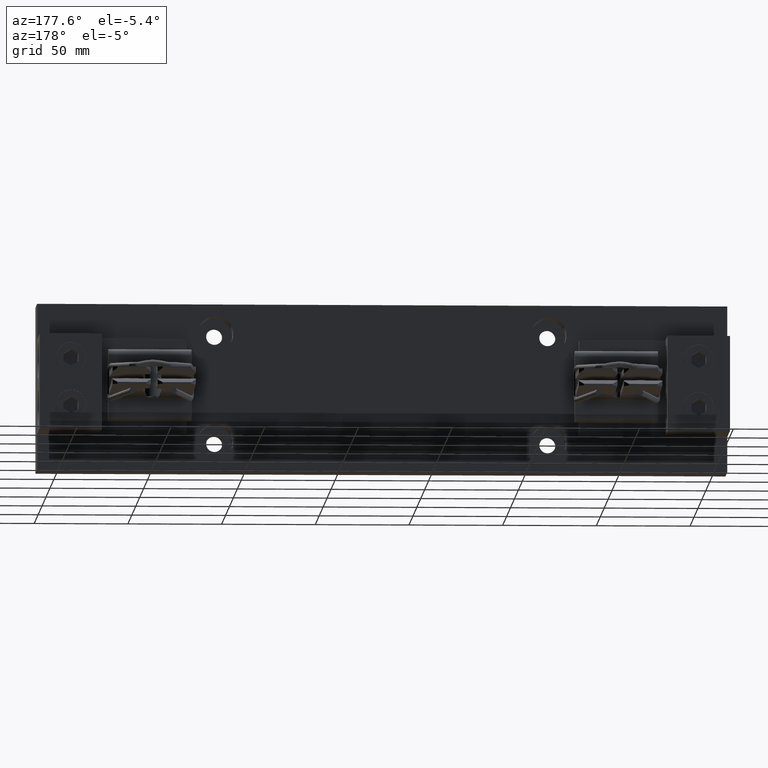
[diagram: clean part render]
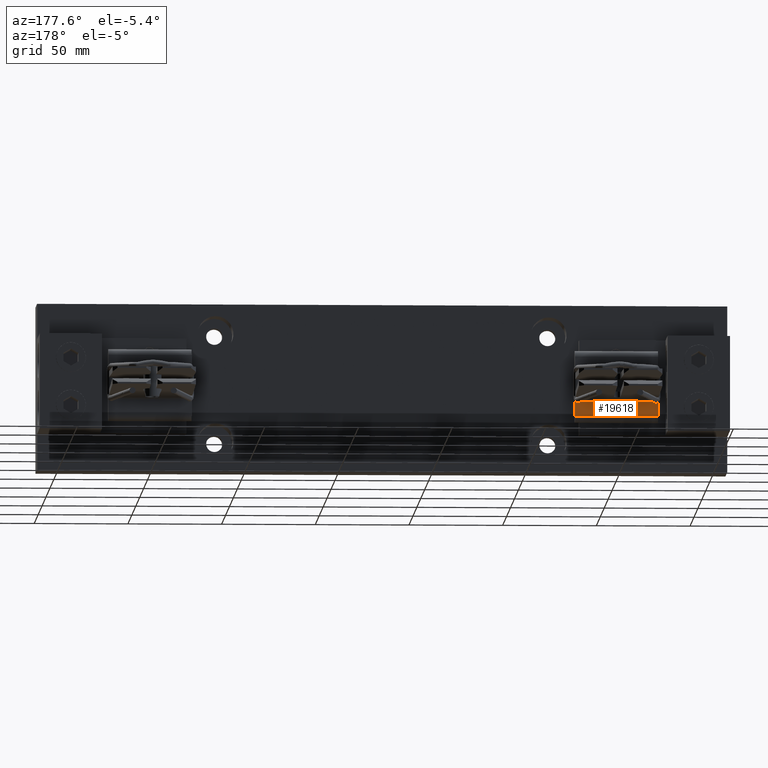
[diagram: same view with one face highlighted and labeled with its STEP entity id]
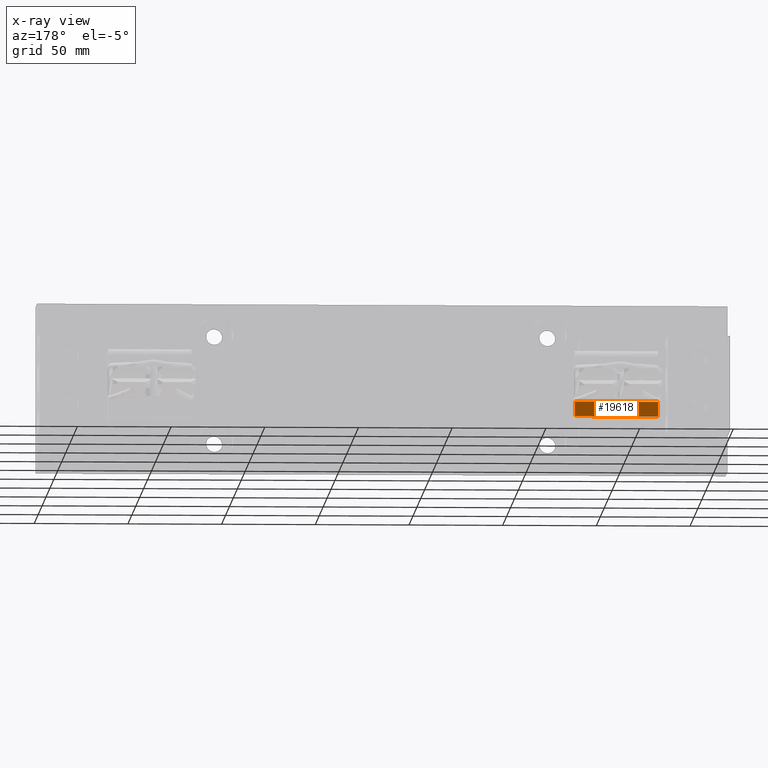
[diagram: x-ray of the same camera — body ghosted, the highlighted face saturated]
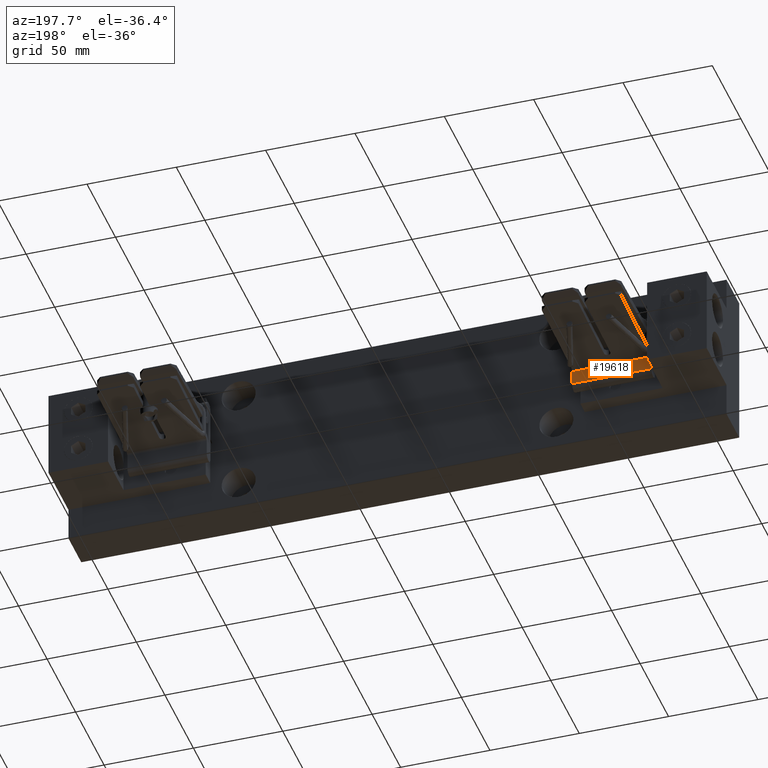
[diagram: same view with one face highlighted and labeled with its STEP entity id]
A machine part, auxiliary view. The second image highlights one B-rep face of the part: STEP entity #19618.
The next image is the same camera in x-ray: the body ghosted, the highlighted face saturated — about 0% of this face is hidden behind the body in this view.
A second angle (auxiliary view) of the same face is appended — the face is thin or edge-on in the first view.
In plain terms, the highlighted planar face has unit normal (0, -1, 0).
Its self-contained STEP definition (entity closure, byte-faithful):
#582 = VERTEX_POINT ( 'NONE', #2393 ) ;
#1145 = LINE ( 'NONE', #24320, #11248 ) ;
#1823 = DIRECTION ( 'NONE',  ( 0.0000000000000000000, -0.0000000000000000000, -1.000000000000000000 ) ) ;
#2393 = CARTESIAN_POINT ( 'NONE',  ( 0.8750000000000000000, 0.2499999999999999700, -0.6315000000000000600 ) ) ;
#2773 = CARTESIAN_POINT ( 'NONE',  ( -0.8750000000000000000, 0.2499999999999999700, -0.6315000000000000600 ) ) ;
#2914 = DIRECTION ( 'NONE',  ( 0.0000000000000000000, 0.0000000000000000000, 1.000000000000000000 ) ) ;
#3705 = CARTESIAN_POINT ( 'NONE',  ( 0.8750000000000000000, 0.2500000000000000600, -0.3200000000000000100 ) ) ;
#3911 = EDGE_CURVE ( 'NONE', #582, #19419, #14519, .T. ) ;
#4604 = LINE ( 'NONE', #3705, #9652 ) ;
#7254 = CARTESIAN_POINT ( 'NONE',  ( -0.8750000000000000000, 0.2500000000000000600, -0.3200000000000000100 ) ) ;
#7422 = EDGE_CURVE ( 'NONE', #19419, #20752, #8402, .T. ) ;
#7463 = ORIENTED_EDGE ( 'NONE', *, *, #7422, .T. ) ;
#8402 = LINE ( 'NONE', #14316, #18517 ) ;
#8731 = DIRECTION ( 'NONE',  ( -1.000000000000000000, -0.0000000000000000000, -0.0000000000000000000 ) ) ;
#9652 = VECTOR ( 'NONE', #15102, 39.37007874015748100 ) ;
#11248 = VECTOR ( 'NONE', #14709, 39.37007874015748100 ) ;
#11500 = AXIS2_PLACEMENT_3D ( 'NONE', #24677, #13232, #1823 ) ;
#12566 = ORIENTED_EDGE ( 'NONE', *, *, #3911, .T. ) ;
#13232 = DIRECTION ( 'NONE',  ( 0.0000000000000000000, -1.000000000000000000, 0.0000000000000000000 ) ) ;
#14316 = CARTESIAN_POINT ( 'NONE',  ( -0.8750000000000000000, 0.2499999999999999700, -0.6315000000000000600 ) ) ;
#14519 = LINE ( 'NONE', #21953, #24092 ) ;
#14709 = DIRECTION ( 'NONE',  ( 0.0000000000000000000, 0.0000000000000000000, 1.000000000000000000 ) ) ;
#15102 = DIRECTION ( 'NONE',  ( -1.000000000000000000, -0.0000000000000000000, -0.0000000000000000000 ) ) ;
#16505 = ORIENTED_EDGE ( 'NONE', *, *, #16690, .F. ) ;
#16690 = EDGE_CURVE ( 'NONE', #23689, #20752, #4604, .T. ) ;
#18517 = VECTOR ( 'NONE', #2914, 39.37007874015748100 ) ;
#19419 = VERTEX_POINT ( 'NONE', #2773 ) ;
#19618 = ADVANCED_FACE ( 'NONE', ( #24243 ), #24513, .F. ) ;
#20752 = VERTEX_POINT ( 'NONE', #7254 ) ;
#21953 = CARTESIAN_POINT ( 'NONE',  ( 0.8750000000000000000, 0.2499999999999999700, -0.6315000000000000600 ) ) ;
#22519 = CARTESIAN_POINT ( 'NONE',  ( 0.8750000000000000000, 0.2500000000000000600, -0.3200000000000000100 ) ) ;
#23048 = EDGE_CURVE ( 'NONE', #582, #23689, #1145, .T. ) ;
#23689 = VERTEX_POINT ( 'NONE', #22519 ) ;
#23878 = EDGE_LOOP ( 'NONE', ( #7463, #16505, #24734, #12566 ) ) ;
#24092 = VECTOR ( 'NONE', #8731, 39.37007874015748100 ) ;
#24243 = FACE_OUTER_BOUND ( 'NONE', #23878, .T. ) ;
#24320 = CARTESIAN_POINT ( 'NONE',  ( 0.8750000000000000000, 0.2499999999999999700, -0.6315000000000000600 ) ) ;
#24513 = PLANE ( 'NONE',  #11500 ) ;
#24677 = CARTESIAN_POINT ( 'NONE',  ( 0.8750000000000000000, 0.2499999999999999700, -0.6315000000000000600 ) ) ;
#24734 = ORIENTED_EDGE ( 'NONE', *, *, #23048, .F. ) ;